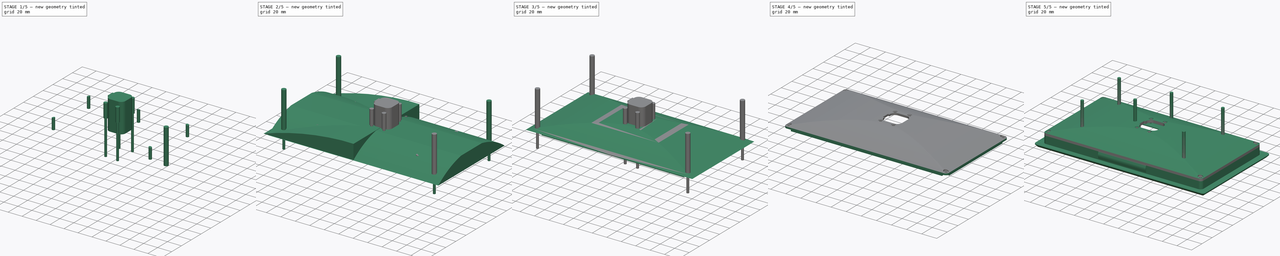
[diagram: build sequence overview — one tinted view per stage of 5, left to right]
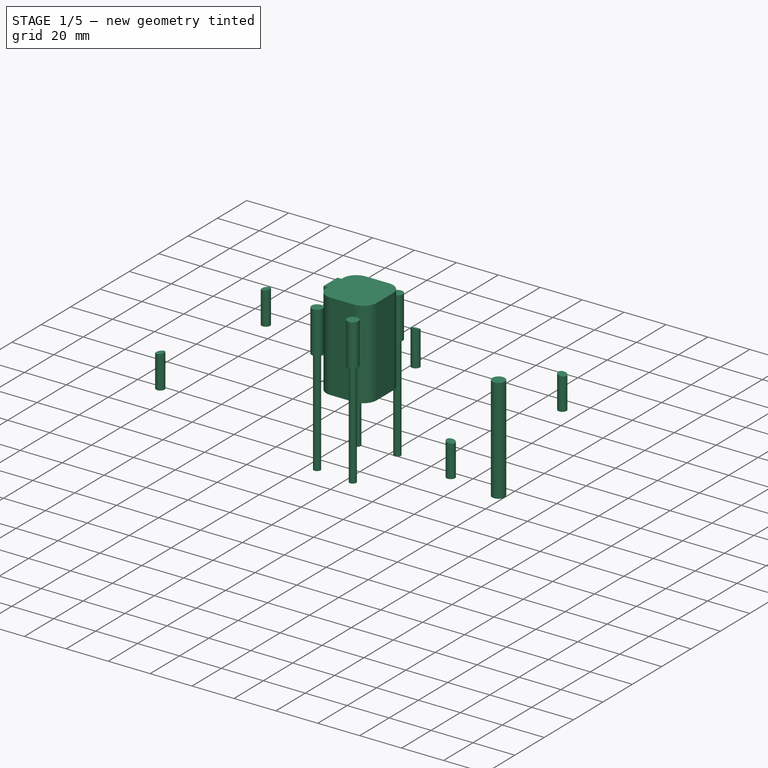
[diagram: stage 1 of 5 — iso view after this stage's code; geometry added in this stage tinted green]
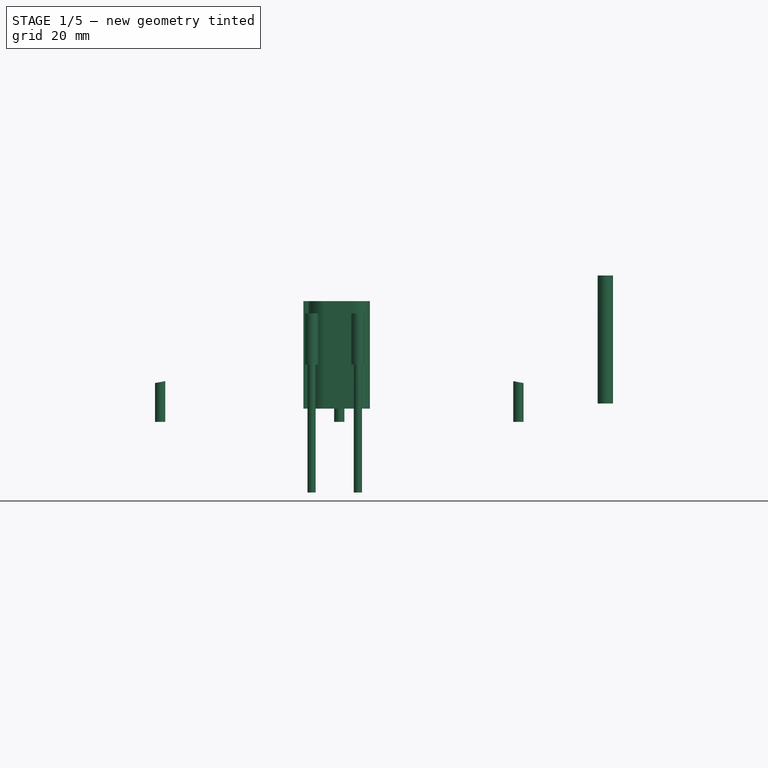
[diagram: stage 1 of 5 — front view after this stage's code; geometry added in this stage tinted green]
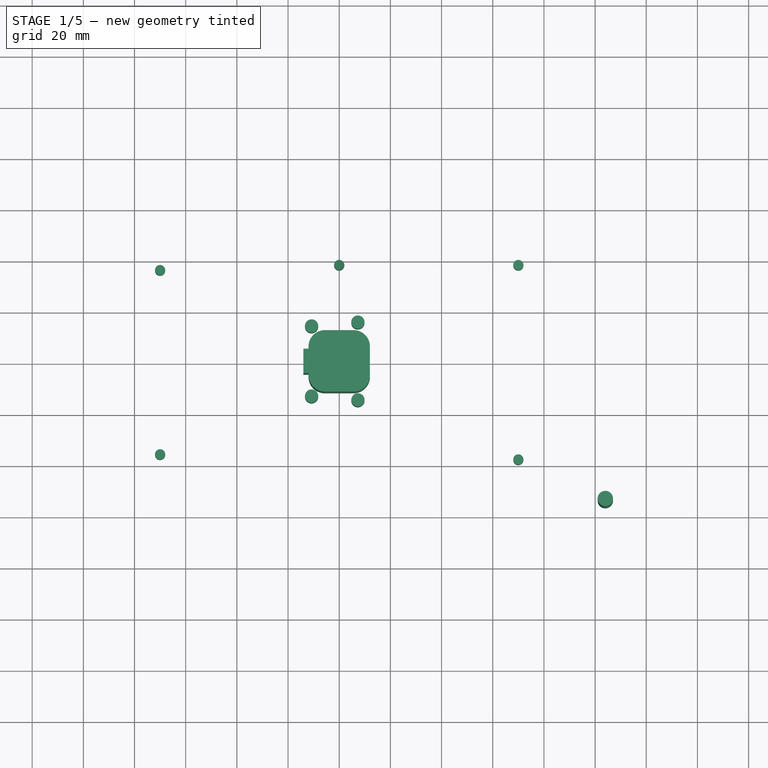
[diagram: stage 1 of 5 — top view after this stage's code; geometry added in this stage tinted green]
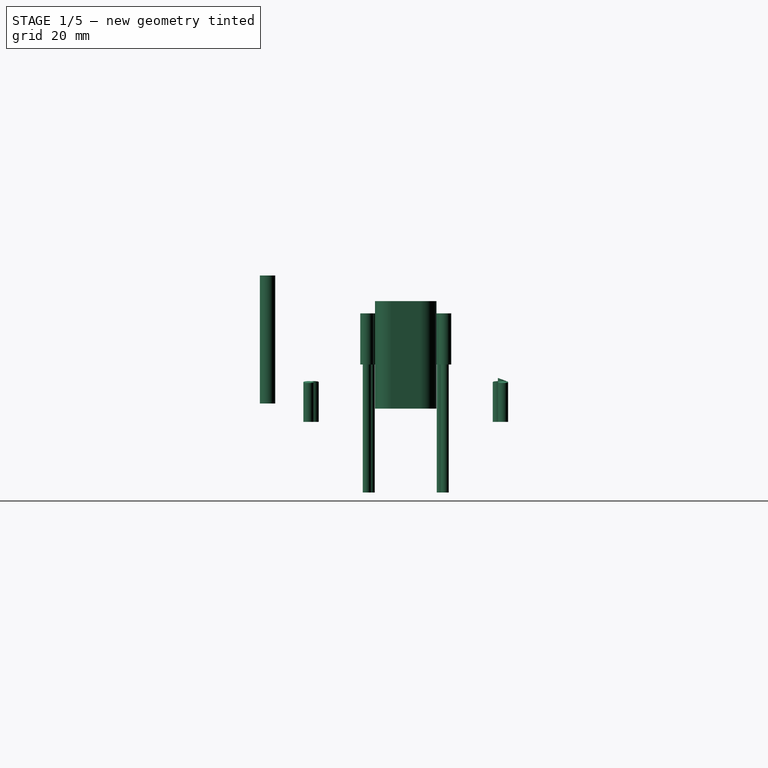
[diagram: stage 1 of 5 — right view after this stage's code; geometry added in this stage tinted green]
FCSTD DOCUMENT  (FreeCAD 0.17R6700 (Git))
Label: enclosure2_back
License: All rights reserved
LicenseURL: http://en.wikipedia.org/wiki/All_rights_reserved
objects: Sketcher::SketchObject×10, PartDesign::Pad×10, Part::Feature×7, Part::FeaturePython×6, Part::Mirroring×6, Part::MultiFuse×6, PartDesign::Mirrored×4, Part::MultiCommon×4, Part::Cylinder×3, Part::Cut×3, Part::Fillet×1
note: 70 computed .brp shape members not serialized (recipe doc carries the construction recipe); baked Part::Feature solids carry a one-line shape summary decoded from their .brp

FEATURE [Part::Feature] Part__Feature  label="pcb"
  Placement = pos=(26.6612,-3.4798,0) rot=(0,0,1;3.14159rad)
  shape: bbox 87.31 x 61.33 x 37.48 mm, 5234 faces (baked)
FEATURE [Part::Feature] Part__Feature001  label="lcd"
  Placement = pos=(-76.92,-38.815,-10) rot=(0,0,1;0rad)
  shape: bbox 165 x 107 x 4.7 mm, 16 faces (baked)
FEATURE [Part::Cylinder] Cylinder
  Angle = 360
  Height = 50
  Placement = pos=(104,-54,2) rot=(0,0,1;0rad)
  Radius = 3
FEATURE [Sketcher::SketchObject] Sketch008
  sketch-geometry (13):
    g0: LineSegment StartX=5.6 StartY=12 StartZ=0 EndX=-5.6 EndY=12 EndZ=0
    g1: LineSegment StartX=-12 StartY=5.6 StartZ=0 EndX=-12 EndY=4.75 EndZ=0
    g2: LineSegment StartX=-5.6 StartY=-12 StartZ=0 EndX=5.6 EndY=-12 EndZ=0
    g3: LineSegment StartX=12 StartY=-5.6 StartZ=0 EndX=12 EndY=0 EndZ=0
    g4: ArcOfCircle CenterX=-5.6 CenterY=-5.6 CenterZ=0 NormalX=0 NormalY=0 NormalZ=1 Radius=6.4 StartAngle=3.14159 EndAngle=4.71239
    g5: ArcOfCircle CenterX=-5.6 CenterY=5.6 CenterZ=0 NormalX=0 NormalY=0 NormalZ=1 Radius=6.4 StartAngle=1.5708 EndAngle=3.14159
    g6: ArcOfCircle CenterX=5.6 CenterY=5.6 CenterZ=0 NormalX=0 NormalY=0 NormalZ=1 Radius=6.4 StartAngle=0 EndAngle=1.5708
    g7: ArcOfCircle CenterX=5.6 CenterY=-5.6 CenterZ=0 NormalX=0 NormalY=0 NormalZ=1 Radius=6.4 StartAngle=4.71239 EndAngle=6.28319
    g8: LineSegment StartX=12 StartY=0 StartZ=0 EndX=12 EndY=5.6 EndZ=0
    g9: LineSegment StartX=-12 StartY=4.75 StartZ=0 EndX=-14 EndY=4.75 EndZ=0
    g10: LineSegment StartX=-14 StartY=4.75 StartZ=0 EndX=-14 EndY=-4.75 EndZ=0
    g11: LineSegment StartX=-14 StartY=-4.75 StartZ=0 EndX=-12 EndY=-4.75 EndZ=0
    g12: LineSegment StartX=-12 StartY=-4.75 StartZ=0 EndX=-12 EndY=-5.6 EndZ=0
  constraints (33):
    c: Horizontal(g0)
    c: Horizontal(g2)
    c: Vertical(g1)
    c: Vertical(g3)
    c: Tangent(g2,g4) = -1.5708
    c: Tangent(g12,g4) = -1.5708
    c: Tangent(g1,g5) = -1.5708
    c: Tangent(g0,g5) = -1.5708
    c: Tangent(g0,g6) = -1.5708
    c: Tangent(g8,g6) = -1.5708
    c: Tangent(g3,g7) = -1.5708
    c: Tangent(g2,g7) = -1.5708
    c: Equal(g5,g4)
    c: Equal(g4,g7)
    c: DistanceX(g12,g3) = 24
    c: DistanceY(g2,g0) = 24
    c: Symmetric(g1,g8,g-2)
    c: Symmetric(g0,g2,g-1)
    c: Radius(g5) = 6.4
    c: Tangent(g3,g8)
    c: Equal(g8,g3)
    c: Horizontal(g9)
    c: Coincident(g9,g10)
    c: Vertical(g10)
    c: Coincident(g10,g11)
    c: Horizontal(g11)
    c: Coincident(g1,g9)
    c: Coincident(g12,g11)
    c: Tangent(g1,g12)
    c: Symmetric(g10,g9,g-1)
    c: DistanceY(g10,g10) = 9.5
    c: DistanceX(g11,g11) = 2
    c: Coincident(g3,g8)
FEATURE [PartDesign::Pad] Pad009
  Length = 42
  Length2 = 100
  Sketch = -> Sketch008
  Type = 0
FEATURE [Part::Cylinder] Cylinder001
  Angle = 360
  Height = 50
  Placement = pos=(-10.8,-13.7,-32.8) rot=(0,0,1;0rad)
  Radius = 1.6
FEATURE [Sketcher::SketchObject] Sketch009
  ExternalGeometry = -> [Cylinder001]
  Placement = pos=(-10.8,-13.7,17.2) rot=(0,0,1;0rad)
  Support = -> Cylinder001 [Face2]
  sketch-geometry (1):
    g0: Circle CenterX=0 CenterY=0 CenterZ=0 NormalX=0 NormalY=0 NormalZ=1 Radius=2.6
  constraints (2):
    c: Coincident(g0,g-1)
    c: Radius(g0) = 2.6
FEATURE [PartDesign::Pad] Pad010
  Length = 20
  Length2 = 100
  Placement = pos=(-10.8,-13.7,-32.8) rot=(0,0,1;0rad)
  Sketch = -> Sketch009
  Type = 0
FEATURE [Part::Mirroring] Part__Mirroring002  label="Pad010 (Mirror #3)"
  Base = (0,0,0)
  Normal = (0,1,0)
  Source = -> Pad010
FEATURE [Part::FeaturePython] Clone  label="Clone of Pad010"  # Draft clone (typed FeaturePython)
  Objects = -> [Pad010]
  Placement = pos=(7.3,-15.2,-32.8) rot=(0,0,1;0rad)
  Scale = (1,1,1)
FEATURE [Part::Mirroring] Part__Mirroring003  label="Clone of Pad010 (Mirror #4)"
  Base = (0,0,0)
  Normal = (0,1,0)
  Source = -> Clone
FEATURE [Part::MultiFuse] Fusion002
  Shapes = -> [Pad009,Part__Mirroring002,Pad010,Part__Mirroring003,Clone]
FEATURE [Part::MultiFuse] Fusion004  label="pillars"
  Shapes = -> [Solid007,Solid001,Solid003,Solid009,Solid011]
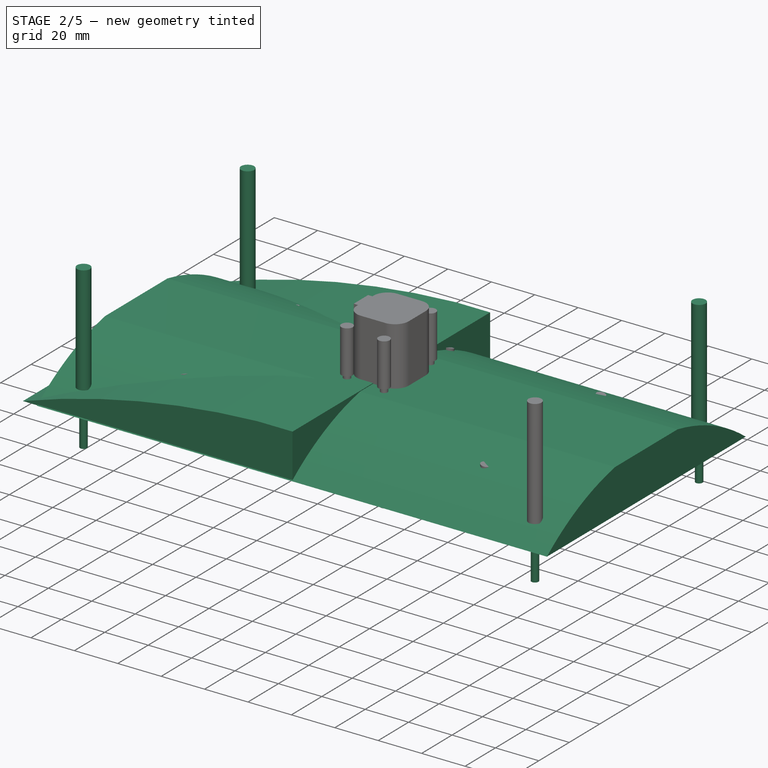
[diagram: stage 2 of 5 — iso view after this stage's code; geometry added in this stage tinted green]
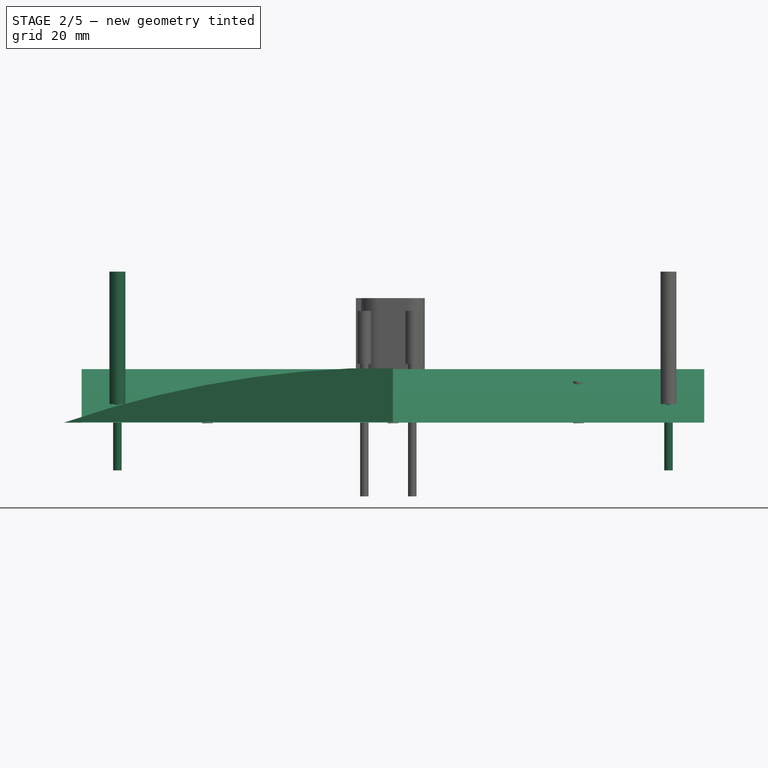
[diagram: stage 2 of 5 — front view after this stage's code; geometry added in this stage tinted green]
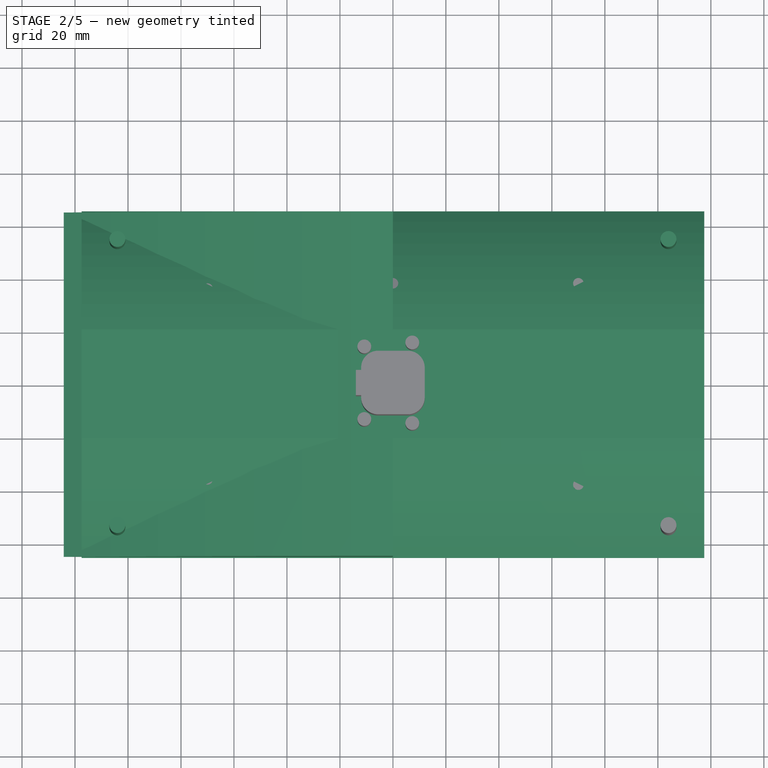
[diagram: stage 2 of 5 — top view after this stage's code; geometry added in this stage tinted green]
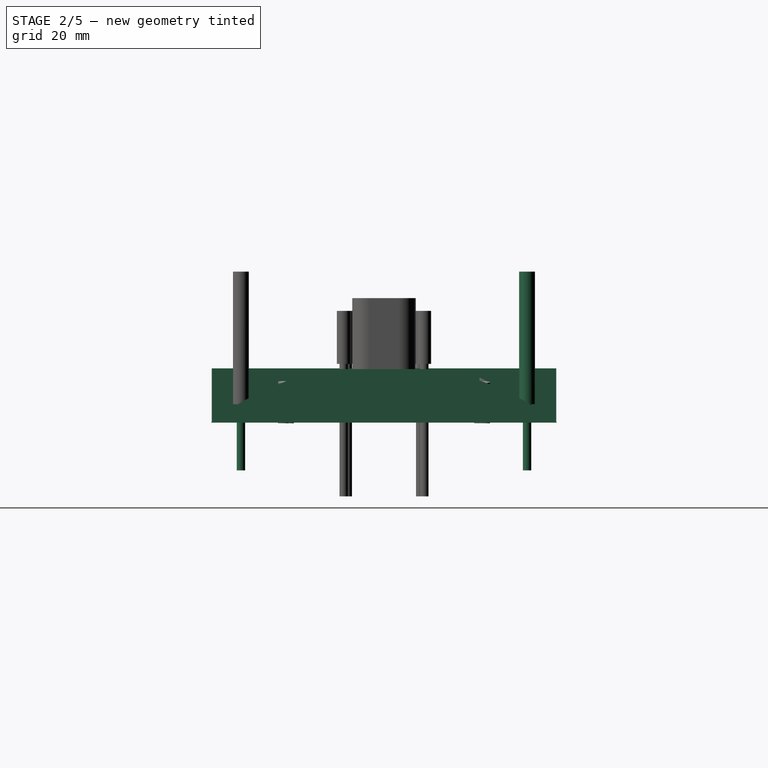
[diagram: stage 2 of 5 — right view after this stage's code; geometry added in this stage tinted green]
FEATURE [Sketcher::SketchObject] Sketch006
  Placement = pos=(0,0,0) rot=(1,0,0;1.5708rad)
  sketch-geometry (5):
    g0: LineSegment StartX=0 StartY=-5 StartZ=0 EndX=-124.236 EndY=-5 EndZ=0
    g1: ArcOfCircle CenterX=0 CenterY=-364.96 CenterZ=0 NormalX=0 NormalY=0 NormalZ=1 Radius=380.797 StartAngle=1.61283 EndAngle=1.90313
    g2: LineSegment StartX=-16 StartY=15.5 StartZ=0 EndX=0 EndY=15.5 EndZ=0
    g3: LineSegment [constr] StartX=-108 StartY=0.2 StartZ=0 EndX=0 EndY=0.2 EndZ=0
    g4: LineSegment StartX=0 StartY=-5 StartZ=0 EndX=0 EndY=15.5 EndZ=0
  constraints (18):
    c: PointOnObject(g1,g-2)
    c: PointOnObject(g4,g-2)
    c: Horizontal(g2)
    c: PointOnObject(g2,g-2)
    c: DistanceY(g-1,g2) = 15.5
    c: Horizontal(g3)
    c: PointOnObject(g3,g-2)
    c: Coincident(g1,g0)
    c: DistanceX(g3,g3) = 108
    c: DistanceY(g-1,g3) = 0.2
    c: PointOnObject(g3,g1)
    c: Coincident(g1,g2)
    c: Coincident(g2,g4)
    c: DistanceX(g2,g2) = 16
    c: Coincident(g4,g0)
    c: Vertical(g4)
    c: Horizontal(g0)
    c: DistanceY(g0,g-1) = 5
FEATURE [Sketcher::SketchObject] Sketch007
  Placement = pos=(0,0,0) rot=(0.57735,0.57735,0.57735;2.0944rad)
  sketch-geometry (5):
    g0: LineSegment StartX=-20.5 StartY=15.2 StartZ=0 EndX=0 EndY=15.2 EndZ=0
    g1: LineSegment [constr] StartX=-58 StartY=0.2 StartZ=0 EndX=0 EndY=0.2 EndZ=0
    g2: ArcOfCircle CenterX=0 CenterY=-90.425 CenterZ=0 NormalX=0 NormalY=0 NormalZ=1 Radius=107.596 StartAngle=1.7625 EndAngle=2.22433
    g3: LineSegment StartX=0 StartY=15.2 StartZ=0 EndX=0 EndY=-5 EndZ=0
    g4: LineSegment StartX=-65.4176 StartY=-5 StartZ=0 EndX=0 EndY=-5 EndZ=0
  constraints (18):
    c: PointOnObject(g0,g-2)
    c: Horizontal(g0)
    c: PointOnObject(g1,g-2)
    c: Horizontal(g1)
    c: DistanceX(g1,g1) = 58
    c: DistanceY(g-1,g1) = 0.2
    c: PointOnObject(g2,g-2)
    c: PointOnObject(g3,g-2)
    c: PointOnObject(g1,g2)
    c: Coincident(g4,g2)
    c: Coincident(g2,g0)
    c: DistanceY(g-1,g0) = 15.2
    c: Coincident(g0,g3)
    c: DistanceX(g0,g0) = 20.5
    c: Horizontal(g4)
    c: Coincident(g3,g4)
    c: Vertical(g3)
    c: DistanceY(g3,g-1) = 5
FEATURE [PartDesign::Pad] Pad006
  Length = 130
  Length2 = 100
  Midplane = true
  Placement = pos=(0,0,0) rot=(1,0,0;1.5708rad)
  Sketch = -> Sketch006
  Type = 0
FEATURE [PartDesign::Pad] Pad007
  Length = 235
  Length2 = 100
  Midplane = true
  Placement = pos=(0,0,0) rot=(0.57735,0.57735,0.57735;2.0944rad)
  Sketch = -> Sketch007
  Type = 0
FEATURE [PartDesign::Mirrored] Mirrored003
  MirrorPlane = -> Sketch007 [V_Axis]
  Originals = -> [Pad007]
  Placement = pos=(0,0,0) rot=(0.57735,0.57735,0.57735;2.0944rad)
FEATURE [Sketcher::SketchObject] Sketch
  Placement = pos=(104,-54,2) rot=(1,0,0;3.14159rad)
  Support = -> Cylinder [Face3]
  sketch-geometry (1):
    g0: Circle CenterX=0 CenterY=0 CenterZ=0 NormalX=0 NormalY=0 NormalZ=1 Radius=1.6
  constraints (2):
    c: Coincident(g0,g-1)
    c: Radius(g0) = 1.6
FEATURE [PartDesign::Pad] Pad008
  Length = 25
  Length2 = 100
  Placement = pos=(104,-54,2) rot=(0,0,1;0rad)
  Sketch = -> Sketch
  Type = 0
FEATURE [Part::Mirroring] Part__Mirroring  label="Pad008 (Mirror #1)"
  Base = (0,0,0)
  Normal = (0,1,0)
  Source = -> Pad008
FEATURE [Part::MultiFuse] Fusion
  Shapes = -> [Pad008,Part__Mirroring]
FEATURE [Part::Mirroring] Part__Mirroring001  label="Fusion (Mirror #2)"
  Base = (0,0,0)
  Normal = (1,0,0)
  Source = -> Fusion
FEATURE [Part::MultiFuse] Fusion001  label="screw_pockets"
  Shapes = -> [Fusion,Part__Mirroring001]
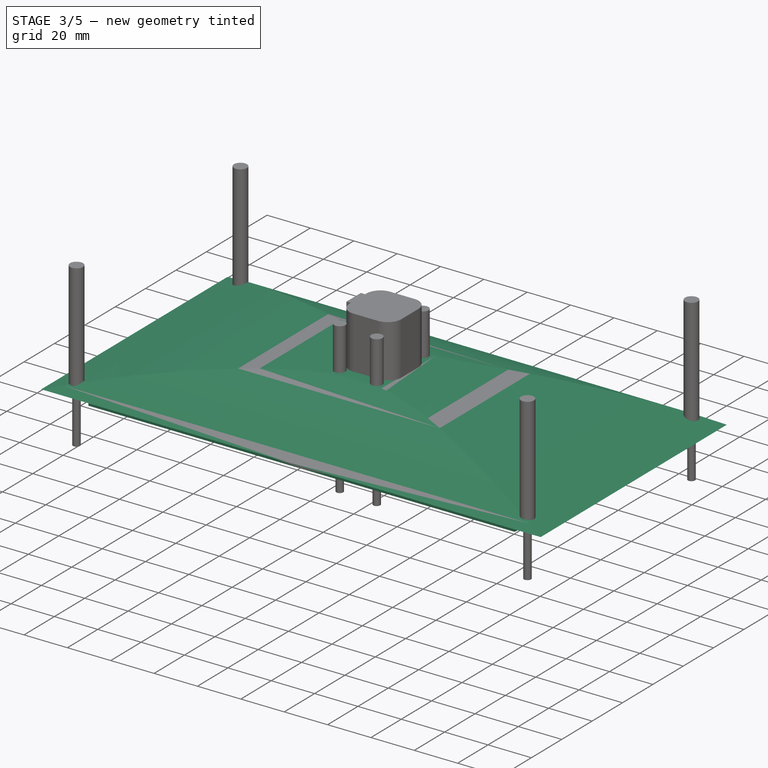
[diagram: stage 3 of 5 — iso view after this stage's code; geometry added in this stage tinted green]
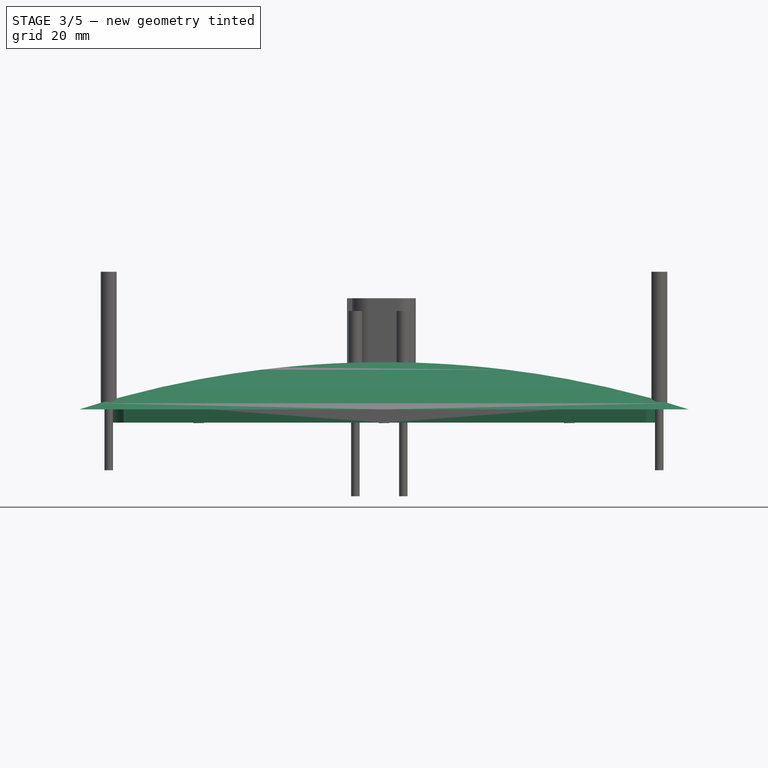
[diagram: stage 3 of 5 — front view after this stage's code; geometry added in this stage tinted green]
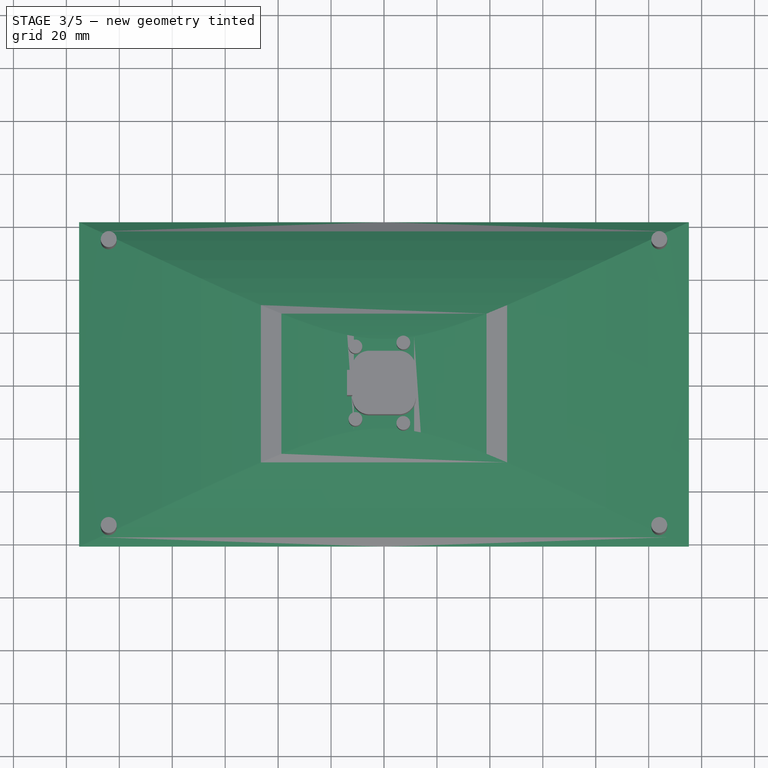
[diagram: stage 3 of 5 — top view after this stage's code; geometry added in this stage tinted green]
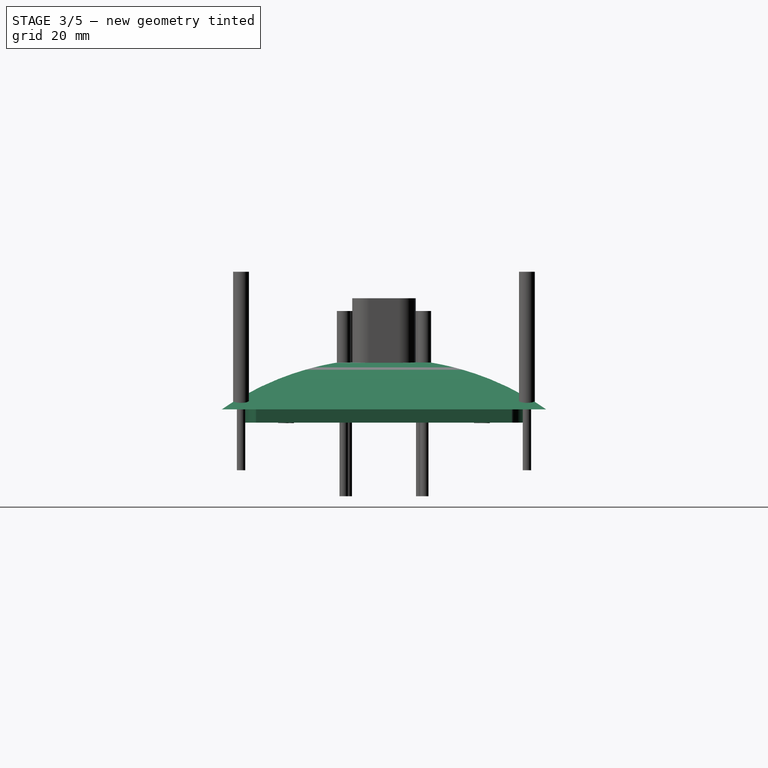
[diagram: stage 3 of 5 — right view after this stage's code; geometry added in this stage tinted green]
FEATURE [Sketcher::SketchObject] Sketch003
  Placement = pos=(0,0,0) rot=(1,0,0;1.5708rad)
  sketch-geometry (5):
    g0: LineSegment StartX=0 StartY=0 StartZ=0 EndX=-115.178 EndY=0 EndZ=0
    g1: ArcOfCircle CenterX=0 CenterY=-362.96 CenterZ=0 NormalX=0 NormalY=0 NormalZ=1 Radius=380.797 StartAngle=1.5708 EndAngle=1.87807
    g2: LineSegment [constr] StartX=-16 StartY=17.5 StartZ=0 EndX=0 EndY=17.5 EndZ=0
    g3: LineSegment [constr] StartX=-108 StartY=2.2 StartZ=0 EndX=0 EndY=2.2 EndZ=0
    g4: LineSegment StartX=0 StartY=0 StartZ=0 EndX=0 EndY=17.8363 EndZ=0
  constraints (17):
    c: Coincident(g0,g-1)
    c: PointOnObject(g0,g-1)
    c: PointOnObject(g1,g-2)
    c: PointOnObject(g1,g-2)
    c: Horizontal(g2)
    c: PointOnObject(g2,g-2)
    c: DistanceX(g2,g2) = 16
    c: DistanceY(g-1,g2) = 17.5
    c: PointOnObject(g2,g1)
    c: Horizontal(g3)
    c: PointOnObject(g3,g-2)
    c: Coincident(g1,g0)
    c: DistanceX(g3,g3) = 108
    c: DistanceY(g-1,g3) = 2.2
    c: Coincident(g4,g-1)
    c: Coincident(g4,g1)
    c: PointOnObject(g3,g1)
FEATURE [PartDesign::Pad] Pad003
  Length = 135
  Length2 = 100
  Midplane = true
  Placement = pos=(0,0,0) rot=(1,0,0;1.5708rad)
  Sketch = -> Sketch003
  Type = 0
FEATURE [PartDesign::Mirrored] Mirrored
  MirrorPlane = -> Sketch003 [V_Axis]
  Originals = -> [Pad003]
  Placement = pos=(0,0,0) rot=(1,0,0;1.5708rad)
FEATURE [Sketcher::SketchObject] Sketch004
  Placement = pos=(0,0,0) rot=(0.57735,0.57735,0.57735;2.0944rad)
  sketch-geometry (5):
    g0: LineSegment [constr] StartX=-20.5 StartY=17.2 StartZ=0 EndX=0 EndY=17.2 EndZ=0
    g1: LineSegment [constr] StartX=-58 StartY=2.2 StartZ=0 EndX=0 EndY=2.2 EndZ=0
    g2: ArcOfCircle CenterX=0 CenterY=-88.425 CenterZ=0 NormalX=0 NormalY=0 NormalZ=1 Radius=107.596 StartAngle=1.5708 EndAngle=2.17699
    g3: LineSegment StartX=0 StartY=19.171 StartZ=0 EndX=0 EndY=0 EndZ=0
    g4: LineSegment StartX=-61.3018 StartY=0 StartZ=0 EndX=0 EndY=0 EndZ=0
  constraints (17):
    c: PointOnObject(g0,g-2)
    c: Horizontal(g0)
    c: PointOnObject(g1,g-2)
    c: Horizontal(g1)
    c: DistanceX(g1,g1) = 58
    c: DistanceY(g-1,g1) = 2.2
    c: DistanceX(g0,g0) = 20.5
    c: DistanceY(g-1,g0) = 17.2
    c: PointOnObject(g2,g-2)
    c: PointOnObject(g2,g-1)
    c: PointOnObject(g2,g-2)
    c: PointOnObject(g0,g2)
    c: PointOnObject(g1,g2)
    c: Coincident(g3,g2)
    c: Coincident(g3,g-1)
    c: Coincident(g4,g2)
    c: Coincident(g4,g-1)
FEATURE [PartDesign::Pad] Pad004
  Length = 275
  Length2 = 100
  Midplane = true
  Placement = pos=(0,0,0) rot=(0.57735,0.57735,0.57735;2.0944rad)
  Sketch = -> Sketch004
  Type = 0
FEATURE [PartDesign::Mirrored] Mirrored001
  MirrorPlane = -> Sketch004 [V_Axis]
  Originals = -> [Pad004]
  Placement = pos=(0,0,0) rot=(0.57735,0.57735,0.57735;2.0944rad)
FEATURE [Part::MultiCommon] Common
  Shapes = -> [Mirrored,Mirrored001]
FEATURE [Sketcher::SketchObject] Sketch005
  sketch-geometry (8):
    g0: LineSegment StartX=-104.3 StartY=48.3079 StartZ=0 EndX=-104.3 EndY=-48.3079 EndZ=0
    g1: LineSegment StartX=-98.3079 StartY=-54.3 StartZ=0 EndX=98.3079 EndY=-54.3 EndZ=0
    g2: LineSegment StartX=104.3 StartY=-48.3079 StartZ=0 EndX=104.3 EndY=48.3079 EndZ=0
    g3: LineSegment StartX=98.3079 StartY=54.3 StartZ=0 EndX=-98.3079 EndY=54.3 EndZ=0
    g4: ArcOfCircle CenterX=-104 CenterY=54 CenterZ=0 NormalX=0 NormalY=0 NormalZ=1 Radius=5.7 StartAngle=4.65973 EndAngle=6.33584
    g5: ArcOfCircle CenterX=-104 CenterY=-54 CenterZ=0 NormalX=0 NormalY=0 NormalZ=1 Radius=5.7 StartAngle=6.23053 EndAngle=7.90664
    g6: ArcOfCircle CenterX=104 CenterY=-54 CenterZ=0 NormalX=0 NormalY=0 NormalZ=1 Radius=5.7 StartAngle=1.51814 EndAngle=3.19425
    g7: ArcOfCircle CenterX=104 CenterY=54 CenterZ=0 NormalX=0 NormalY=0 NormalZ=1 Radius=5.7 StartAngle=3.08894 EndAngle=4.76504
  constraints (25):
    c: Coincident(g0,g4)
    c: Coincident(g0,g5)
    c: Coincident(g1,g5)
    c: Coincident(g1,g6)
    c: Coincident(g2,g6)
    c: Coincident(g2,g7)
    c: Coincident(g3,g4)
    c: Coincident(g3,g7)
    c: DistanceY(g5,g4) = 108
    c: DistanceX(g4,g7) = 208
    c: Symmetric(g7,g4,g-2)
    c: Radius(g4) = 5.7
    c: Equal(g5,g4)
    c: Equal(g4,g7)
    c: Equal(g7,g6)
    c: Symmetric(g2,g0,g-2)
    c: Symmetric(g1,g3,g-1)
    c: DistanceX(g0,g-1) = 104.3
    c: DistanceY(g-1,g3) = 54.3
    c: Horizontal(g1)
    c: Vertical(g2)
    c: Horizontal(g3)
    c: Vertical(g0)
    c: Symmetric(g6,g5,g-2)
    c: DistanceY(g-1,g4) = 54
FEATURE [PartDesign::Pad] Pad005  label="inner_edges"
  Length = 45
  Length2 = 100
  Midplane = true
  Sketch = -> Sketch005
  Type = 0
FEATURE [PartDesign::Mirrored] Mirrored002
  MirrorPlane = -> Sketch006 [V_Axis]
  Originals = -> [Pad006]
  Placement = pos=(0,0,0) rot=(1,0,0;1.5708rad)
FEATURE [Part::MultiCommon] Common002
  Shapes = -> [Mirrored002,Mirrored003]
FEATURE [Part::MultiCommon] Common003
  Shapes = -> [Pad005,Common002]
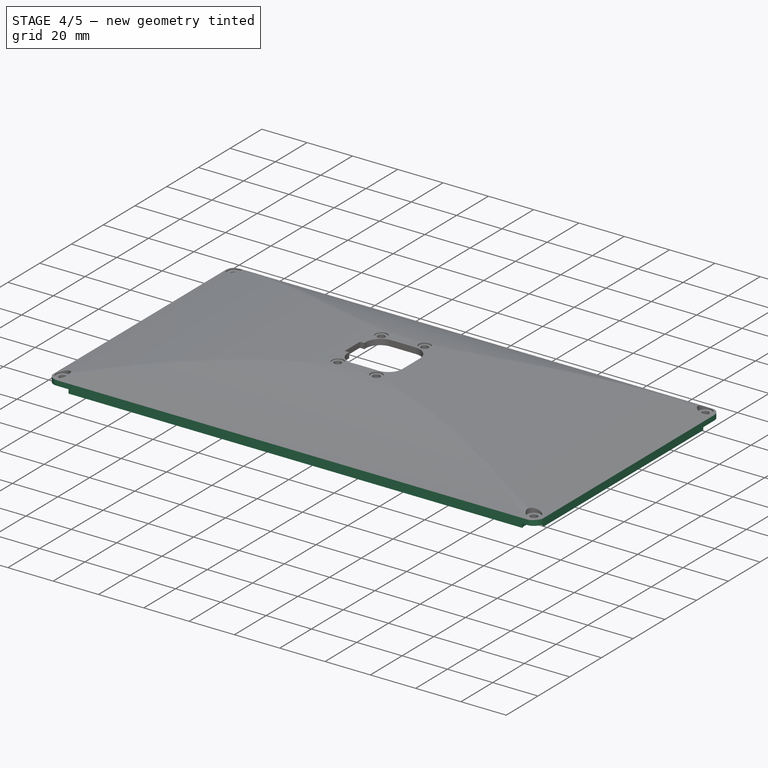
[diagram: stage 4 of 5 — iso view after this stage's code; geometry added in this stage tinted green]
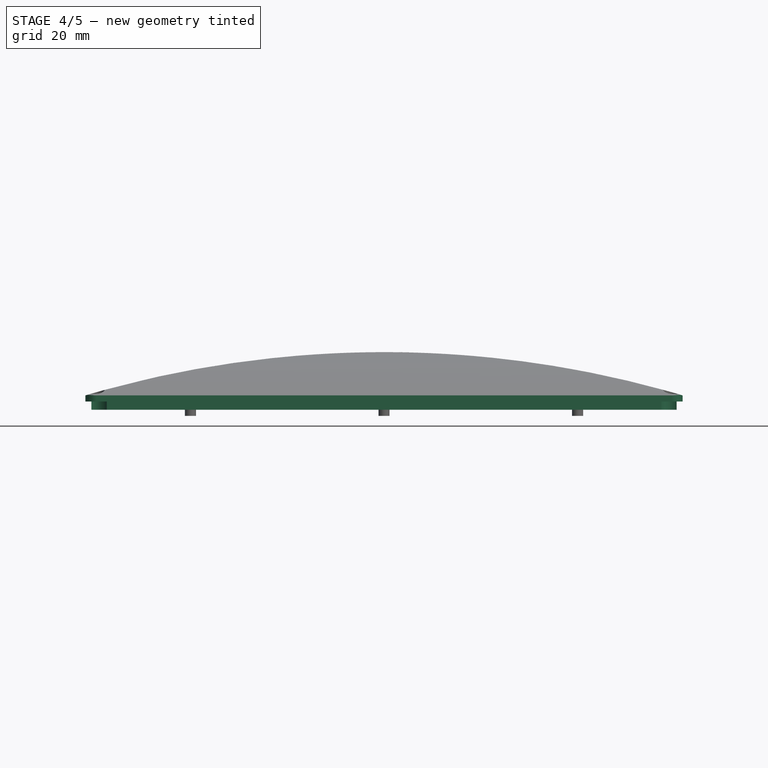
[diagram: stage 4 of 5 — front view after this stage's code; geometry added in this stage tinted green]
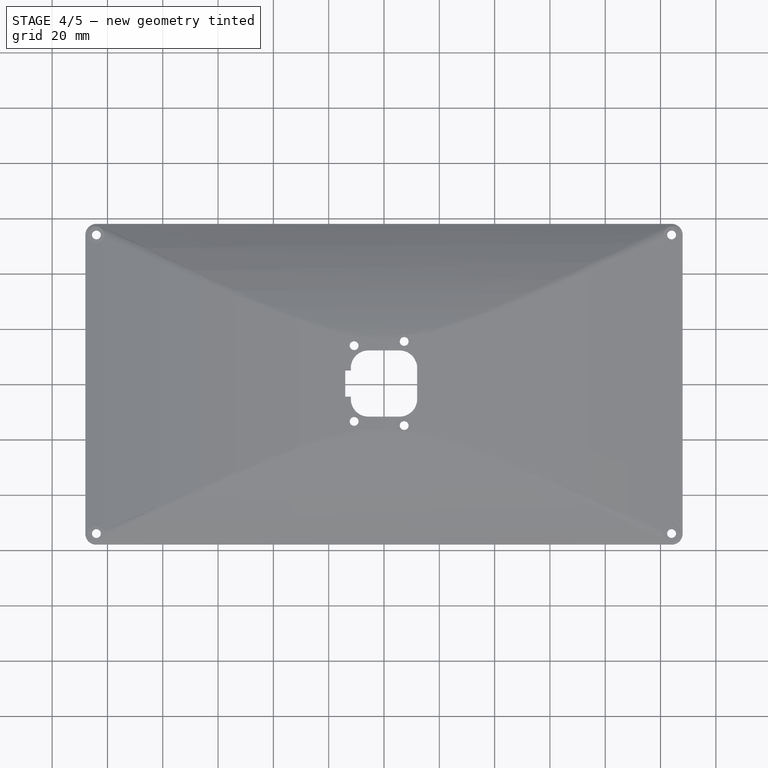
[diagram: stage 4 of 5 — top view after this stage's code; geometry added in this stage tinted green]
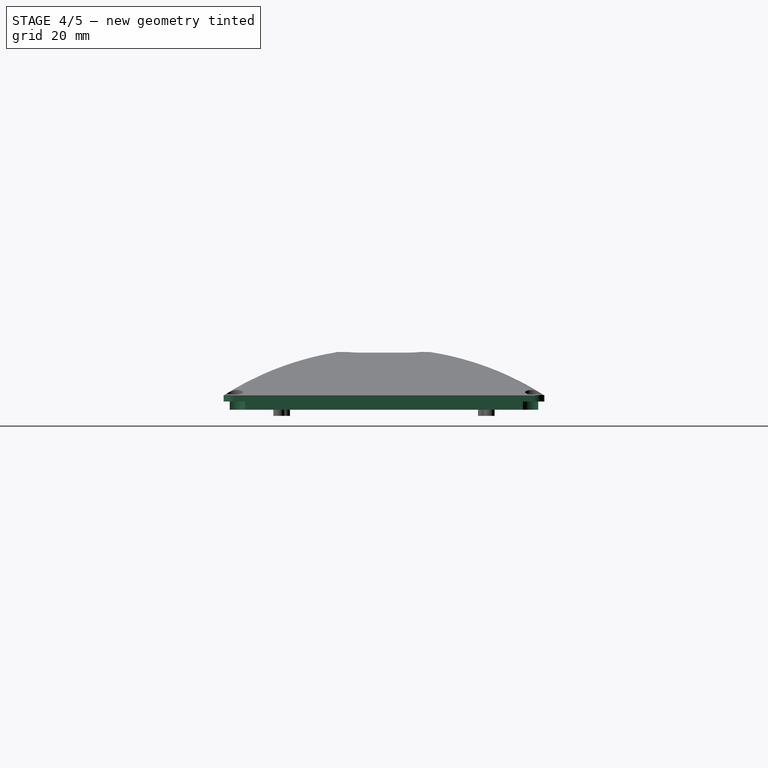
[diagram: stage 4 of 5 — right view after this stage's code; geometry added in this stage tinted green]
FEATURE [Sketcher::SketchObject] Sketch002
  sketch-geometry (8):
    g0: LineSegment StartX=-104 StartY=58 StartZ=0 EndX=104 EndY=58 EndZ=0
    g1: LineSegment StartX=108 StartY=54 StartZ=0 EndX=108 EndY=-54 EndZ=0
    g2: LineSegment StartX=104 StartY=-58 StartZ=0 EndX=-104 EndY=-58 EndZ=0
    g3: LineSegment StartX=-108 StartY=-54 StartZ=0 EndX=-108 EndY=54 EndZ=0
    g4: ArcOfCircle CenterX=104 CenterY=-54 CenterZ=0 NormalX=0 NormalY=0 NormalZ=1 Radius=4 StartAngle=4.71239 EndAngle=6.28319
    g5: ArcOfCircle CenterX=104 CenterY=54 CenterZ=0 NormalX=0 NormalY=0 NormalZ=1 Radius=4 StartAngle=0 EndAngle=1.5708
    g6: ArcOfCircle CenterX=-104 CenterY=54 CenterZ=0 NormalX=0 NormalY=0 NormalZ=1 Radius=4 StartAngle=1.5708 EndAngle=3.14159
    g7: ArcOfCircle CenterX=-104 CenterY=-54 CenterZ=0 NormalX=0 NormalY=0 NormalZ=1 Radius=4 StartAngle=3.14159 EndAngle=4.71239
  constraints (19):
    c: Horizontal(g0)
    c: Horizontal(g2)
    c: Vertical(g1)
    c: Vertical(g3)
    c: Tangent(g1,g4) = 1.5708
    c: Tangent(g2,g4) = 1.5708
    c: Tangent(g0,g5) = 1.5708
    c: Tangent(g1,g5) = 1.5708
    c: Tangent(g0,g6) = 1.5708
    c: Tangent(g3,g6) = 1.5708
    c: Tangent(g3,g7) = 1.5708
    c: Tangent(g2,g7) = 1.5708
    c: Equal(g6,g5)
    c: Equal(g5,g4)
    c: Symmetric(g1,g3,g-2)
    c: Symmetric(g2,g0,g-1)
    c: DistanceY(g2,g0) = 116
    c: DistanceX(g3,g1) = 216
    c: Radius(g4) = 4
FEATURE [PartDesign::Pad] Pad002  label="outer_edges"
  Length = 95
  Length2 = 100
  Sketch = -> Sketch002
  Type = 0
FEATURE [Part::MultiCommon] Common001
  Shapes = -> [Common,Pad002]
FEATURE [Sketcher::SketchObject] Sketch001
  Placement = pos=(0,0,0) rot=(1,0,0;3.14159rad)
  Support = -> Common001 [Face1]
  sketch-geometry (8):
    g0: LineSegment StartX=-105.8 StartY=50.2053 StartZ=0 EndX=-105.8 EndY=-50.2053 EndZ=0
    g1: LineSegment StartX=-100.205 StartY=-55.8 StartZ=0 EndX=100.205 EndY=-55.8 EndZ=0
    g2: LineSegment StartX=105.8 StartY=-50.2053 StartZ=0 EndX=105.8 EndY=50.2053 EndZ=0
    g3: LineSegment StartX=100.205 StartY=55.8 StartZ=0 EndX=-100.205 EndY=55.8 EndZ=0
    g4: ArcOfCircle CenterX=-104 CenterY=54 CenterZ=0 NormalX=0 NormalY=0 NormalZ=1 Radius=4.2 StartAngle=4.26948 EndAngle=6.7261
    g5: ArcOfCircle CenterX=-104 CenterY=-54 CenterZ=0 NormalX=0 NormalY=0 NormalZ=1 Radius=4.2 StartAngle=5.84027 EndAngle=8.29689
    g6: ArcOfCircle CenterX=104 CenterY=-54 CenterZ=0 NormalX=0 NormalY=0 NormalZ=1 Radius=4.2 StartAngle=1.12789 EndAngle=3.5845
    g7: ArcOfCircle CenterX=104 CenterY=54 CenterZ=0 NormalX=0 NormalY=0 NormalZ=1 Radius=4.2 StartAngle=2.69868 EndAngle=5.1553
  constraints (25):
    c: Coincident(g0,g4)
    c: Coincident(g0,g5)
    c: Coincident(g1,g5)
    c: Coincident(g1,g6)
    c: Coincident(g2,g6)
    c: Coincident(g2,g7)
    c: Coincident(g3,g4)
    c: Coincident(g3,g7)
    c: DistanceY(g5,g4) = 108
    c: DistanceX(g4,g7) = 208
    c: Symmetric(g7,g4,g-2)
    c: Radius(g4) = 4.2
    c: Equal(g5,g4)
    c: Equal(g4,g7)
    c: Equal(g7,g6)
    c: Symmetric(g2,g0,g-2)
    c: Symmetric(g1,g3,g-1)
    c: DistanceX(g0,g-1) = 105.8
    c: DistanceY(g-1,g3) = 55.8
    c: Horizontal(g1)
    c: Vertical(g2)
    c: Horizontal(g3)
    c: Vertical(g0)
    c: Symmetric(g6,g5,g-2)
    c: DistanceY(g-1,g4) = 54
FEATURE [PartDesign::Pad] Pad
  Length = 3
  Length2 = 100
  Sketch = -> Sketch001
  Type = 0
FEATURE [Part::Fillet] Fillet
  Base = -> Pad
  Edges = 4 edges r=6: [Edge65,Edge66,Edge68,Edge69]
FEATURE [Part::Cut] Cut
  Base = -> Fillet
  Tool = -> Common003
FEATURE [Part::Cut] Cut001
  Base = -> Cut
  Tool = -> Fusion001
FEATURE [Part::Feature] Solid001
  shape: bbox 4 x 4 x 15.92 mm, 3 faces (baked)
FEATURE [Part::Feature] Solid003
  shape: bbox 4 x 4 x 17.17 mm, 3 faces (baked)
FEATURE [Part::Feature] Solid007
  shape: bbox 4 x 4 x 15.92 mm, 3 faces (baked)
FEATURE [Part::Feature] Solid009
  shape: bbox 4 x 4 x 15.92 mm, 3 faces (baked)
FEATURE [Part::Feature] Solid011
  shape: bbox 4 x 4 x 15.92 mm, 3 faces (baked)
FEATURE [Part::Cut] Cut002
  Base = -> Cut001
  Tool = -> Fusion002
FEATURE [Part::MultiFuse] Fusion005
  Shapes = -> [Cut002,Fusion004]
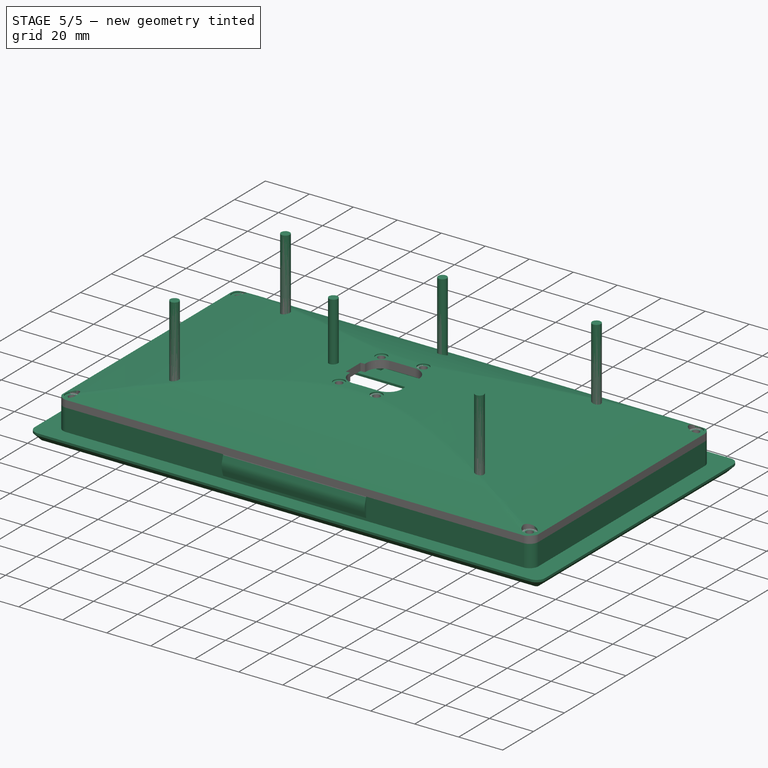
[diagram: stage 5 of 5 — iso view after this stage's code; geometry added in this stage tinted green]
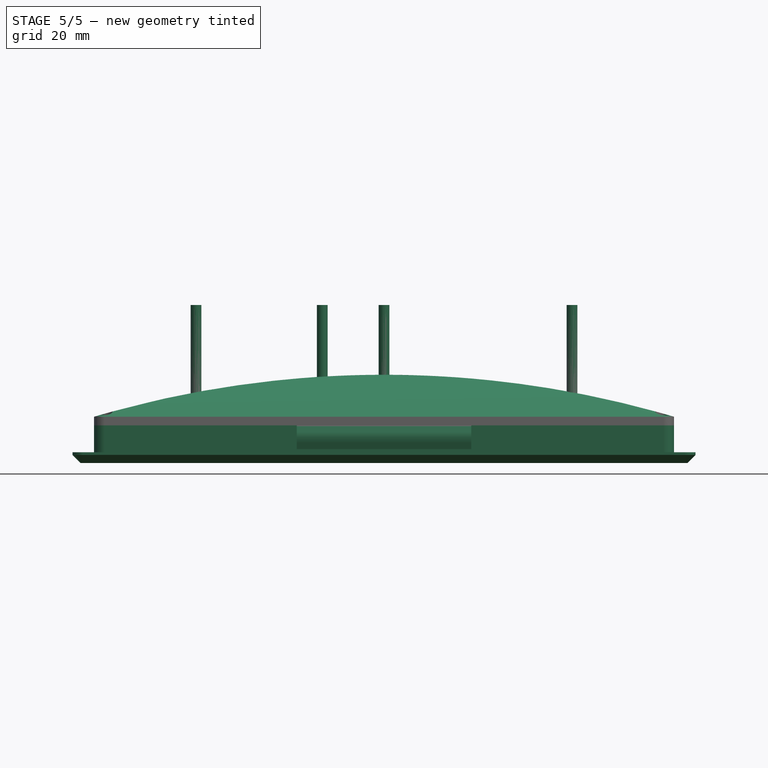
[diagram: stage 5 of 5 — front view after this stage's code; geometry added in this stage tinted green]
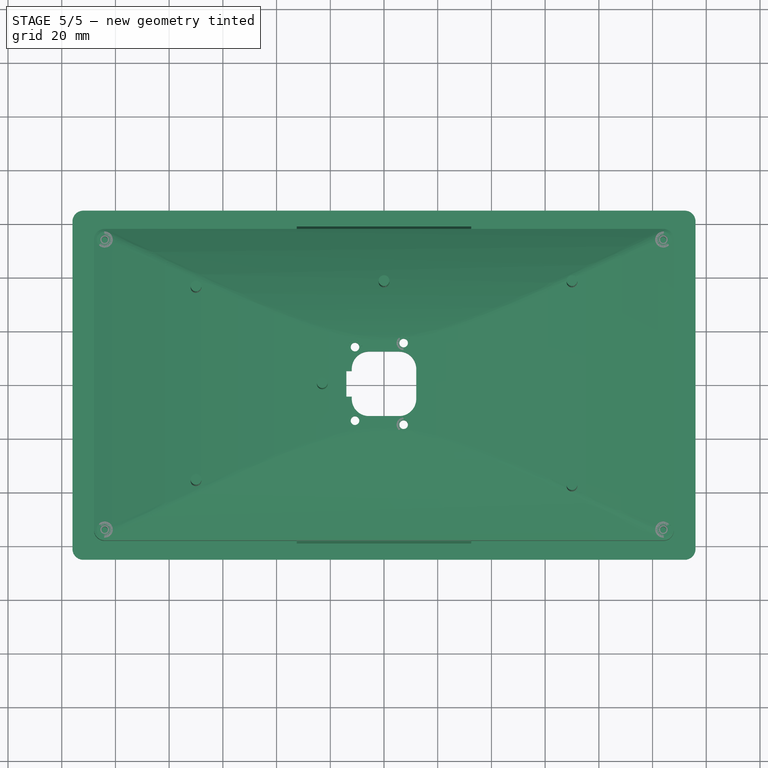
[diagram: stage 5 of 5 — top view after this stage's code; geometry added in this stage tinted green]
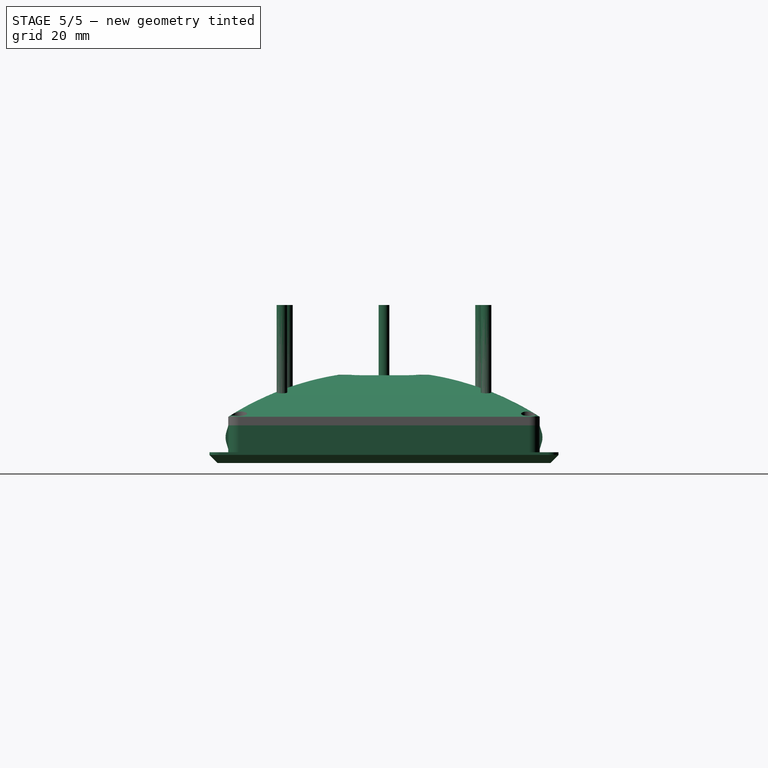
[diagram: stage 5 of 5 — right view after this stage's code; geometry added in this stage tinted green]
FEATURE [Part::FeaturePython] enclosure2_front_01  label="front"  # a2plus imported part (geometry in sourceFile) (typed FeaturePython)
  fixedPosition = true
  sourceFile = <userpath>/uw/display/hw/enclosure2_front.fcstd
  timeLastImport = 1.50039e+09
  updateColors = true
FEATURE [Part::Cylinder] Cylinder002
  Angle = 360
  Height = 50
  Placement = pos=(-70,36,-5.2) rot=(0,0,1;0rad)
  Radius = 2
FEATURE [Part::Mirroring] Part__Mirroring004  label="Cylinder002 (Mirror #5)"
  Base = (0,0,0)
  Normal = (0,1,0)
  Source = -> Cylinder002
FEATURE [Part::FeaturePython] Clone001  label="Clone of Cylinder002"  # Draft clone (typed FeaturePython)
  Objects = -> [Cylinder002]
  Placement = pos=(70,38,-5.2) rot=(0,0,1;0rad)
  Scale = (1,1,1)
FEATURE [Part::Mirroring] Part__Mirroring005  label="Clone of Cylinder002 (Mirror #6)"
  Base = (0,0,0)
  Normal = (0,1,0)
  Source = -> Clone001
FEATURE [Part::FeaturePython] Clone002  label="Clone of Clone of Cylinder002"  # Draft clone (typed FeaturePython)
  Objects = -> [Clone001]
  Placement = pos=(0,38,-5.2) rot=(0,0,1;0rad)
  Scale = (1,1,1)
FEATURE [Part::FeaturePython] Clone003  label="Clone of Clone of Clone of Cylinder002"  # Draft clone (typed FeaturePython)
  Objects = -> [Clone002]
  Placement = pos=(-23,0,-5.2) rot=(0,0,1;0rad)
  Scale = (1,1,1)
FEATURE [Part::MultiFuse] Fusion003
  Shapes = -> [Part__Mirroring004,Cylinder002,Part__Mirroring005,Clone001,Clone002,Clone003]
FEATURE [Part::FeaturePython] Clone004  label="Clone of Cut002"  # Draft clone (typed FeaturePython)
  Objects = -> [Cut002]
  Placement = pos=(0,0,1) rot=(0,0,1;0rad)
  Scale = (1,1,1)
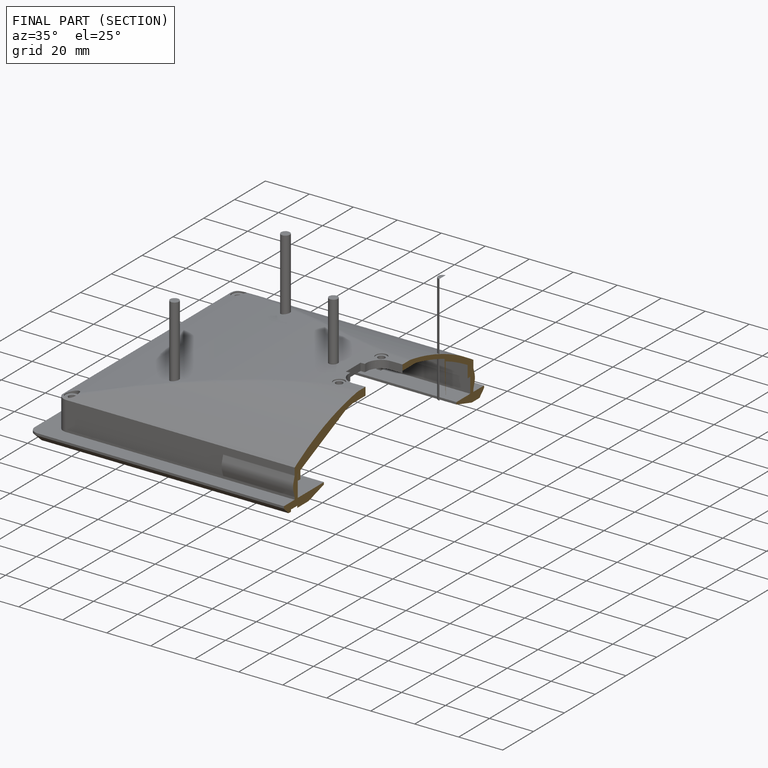
[diagram: finished part — half-section view (interior)]
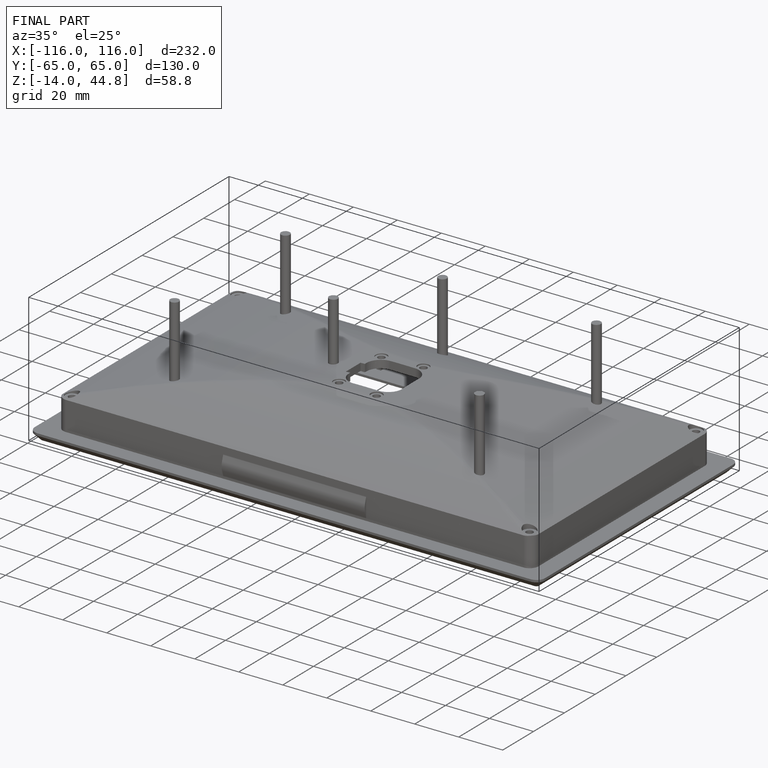
[diagram: finished part — iso view with bounding-box wireframe]
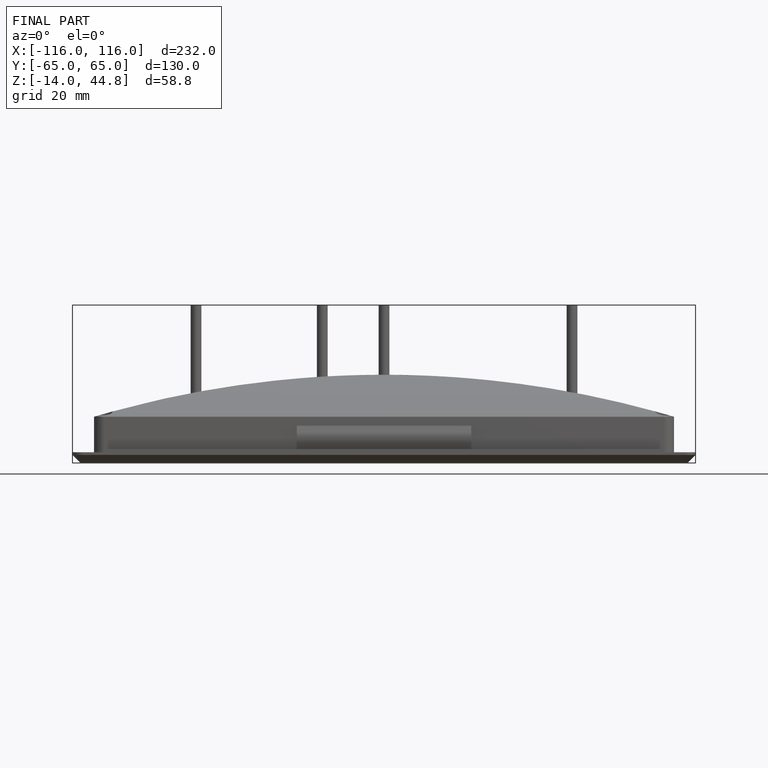
[diagram: finished part — front view with bounding-box wireframe]
